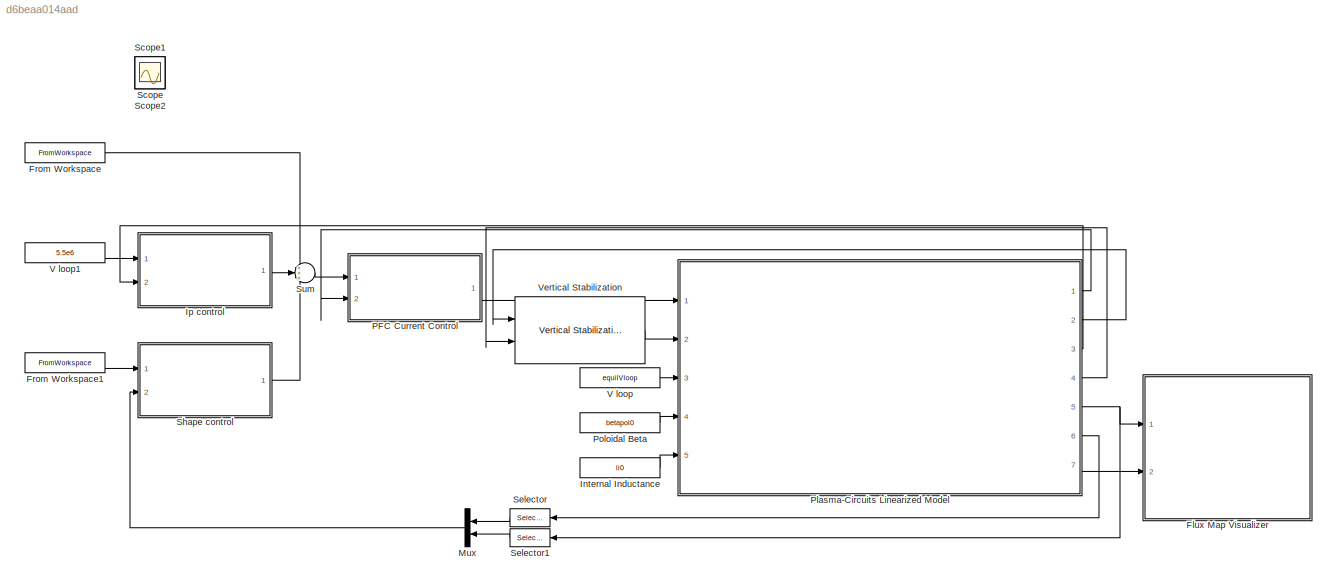
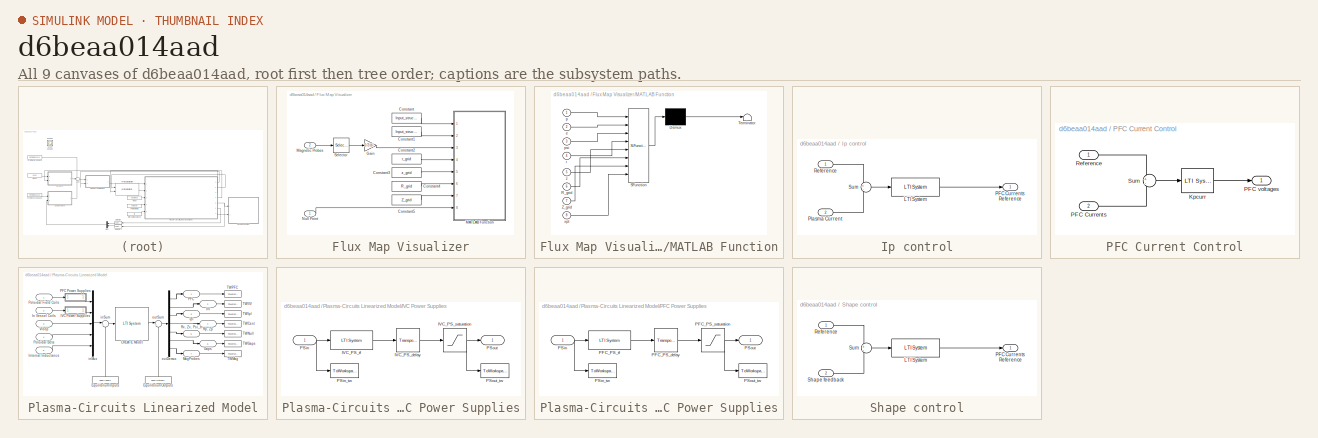
[diagram: thumbnail index - all 9 canvases of the model, root first then tree order]
MODEL slx_d6beaa014aad
KIND model
CONFIG AbsTol = auto
CONFIG EnableMultiTasking = off
CONFIG FixedStep = auto
CONFIG MaxStep = auto
CONFIG MinStep = auto
CONFIG RelTol = 1e-3
CONFIG SampleTimeConstraint = Unconstrained
CONFIG SolverName = VariableStepAuto
CONFIG StartTime = 0.0
CONFIG StopTime = I_FF.time(end)
BLOCK [SubSystem] Flux Map Visualizer
  AncestorBlock = JT60SA_Magnetic_Control/Flux Map Visualizer
  InitFcn = addpath ./flux_grid_functions\n[r_grid, z_grid, R_grid, Z_grid, F0, idxGrid] = initFluxGrid(Input_struct,y_np,y_type, mag, 0);
  NameLocation = top
  Ports = [2]
  RequestExecContextInheritance = off
  StartFcn = % fig_grid= figure()
BLOCK [Constant] Flux Map Visualizer/Constant
  Value = Input_struct.p
BLOCK [Constant] Flux Map Visualizer/Constant1
  Value = Input_struct.e
BLOCK [Constant] Flux Map Visualizer/Constant2
  Value = r_grid
BLOCK [Constant] Flux Map Visualizer/Constant3
  Value = z_grid
BLOCK [Constant] Flux Map Visualizer/Constant4
  Value = R_grid
BLOCK [Constant] Flux Map Visualizer/Constant5
  Value = Z_grid
BLOCK [Gain] Flux Map Visualizer/Gain
  Gain = 1/2/pi
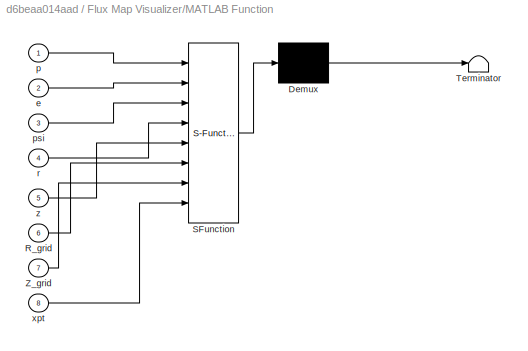
BLOCK [SubSystem] Flux Map Visualizer/MATLAB Function
  ErrorFcn = Stateflow.Translate.translate
  PermitHierarchicalResolution = ExplicitOnly
  Ports = [8]
  RequestExecContextInheritance = off
  SFBlockType = MATLAB Function
  SystemSampleTime = 5e-2
  TreatAsAtomicUnit = on
BLOCK [Demux] Flux Map Visualizer/MATLAB Function/ Demux 
  Outputs = 1
  Ports = [1, 1]
BLOCK [S-Function] Flux Map Visualizer/MATLAB Function/ SFunction 
  EnableBusSupport = on
  FunctionName = sf_sfun
  PortCounts = [8 1]
  Ports = [8, 1]
  SFcnIsStateOwnerBlock = off
  SFunctionDeploymentMode = off
  Tag = Stateflow S-Function 3
BLOCK [Terminator] Flux Map Visualizer/MATLAB Function/ Terminator 
BLOCK [Inport] Flux Map Visualizer/MATLAB Function/R_grid
  Port = 6
BLOCK [Inport] Flux Map Visualizer/MATLAB Function/Z_grid
  Port = 7
BLOCK [Inport] Flux Map Visualizer/MATLAB Function/e
  Port = 2
BLOCK [Inport] Flux Map Visualizer/MATLAB Function/p
BLOCK [Inport] Flux Map Visualizer/MATLAB Function/psi
  Port = 3
BLOCK [Inport] Flux Map Visualizer/MATLAB Function/r
  Port = 4
BLOCK [Inport] Flux Map Visualizer/MATLAB Function/xpt
  Port = 8
BLOCK [Inport] Flux Map Visualizer/MATLAB Function/z
  Port = 5
BLOCK [Inport] Flux Map Visualizer/Magnetic Probes
  Port = 2
BLOCK [Inport] Flux Map Visualizer/Null Point
BLOCK [Selector] Flux Map Visualizer/Selector
  IndexOptions = Index vector (dialog)
  Indices = idxGrid
  InputPortWidth = nMag
  OutputSizes = 1
  Ports = [1, 1]
BLOCK [FromWorkspace] From Workspace
  VariableName = I_FF
BLOCK [FromWorkspace] From Workspace1
  VariableName = shp_ref
BLOCK [Constant] Internal Inductance
  Value = li0
BLOCK [SubSystem] Ip control
  Ports = [2, 1]
  RequestExecContextInheritance = off
BLOCK [Reference] Ip control/LTI System  REF=cstblocks/LTI System
  Ports = [1, 1]
  SourceBlock = cstblocks/LTI System
  SourceProductBaseCode = CT
  SourceType = LTI Block
BLOCK [Outport] Ip control/PFC Currents Reference
  VectorParamsAs1DForOutWhenUnconnected = off
BLOCK [Inport] Ip control/Plasma Current
  Port = 2
BLOCK [Inport] Ip control/Reference
BLOCK [Sum] Ip control/Sum
  Inputs = +-
  Ports = [2, 1]
BLOCK [Mux] Mux
  DisplayOption = bar
  Inputs = 2
  NameLocation = top
  Ports = [2, 1]
BLOCK [SubSystem] PFC Current Control
  AncestorBlock = JT60SA_Magnetic_Control/PFC Current Control
  NameLocation = top
  Ports = [2, 1]
  RequestExecContextInheritance = off
BLOCK [Reference] PFC Current Control/Kpcurr  REF=cstblocks/LTI System
  Ports = [1, 1]
  SourceBlock = cstblocks/LTI System
  SourceProductBaseCode = CT
  SourceType = LTI Block
BLOCK [Inport] PFC Current Control/PFC Currents
  Port = 2
BLOCK [Outport] PFC Current Control/PFC voltages
  VectorParamsAs1DForOutWhenUnconnected = off
BLOCK [Inport] PFC Current Control/Reference
BLOCK [Sum] PFC Current Control/Sum
  Inputs = +-
  Ports = [2, 1]
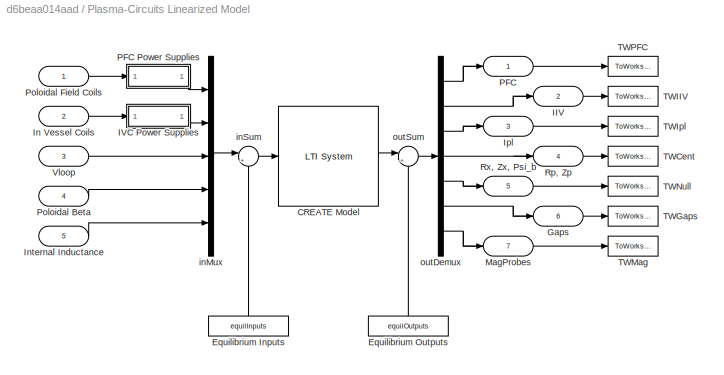
BLOCK [SubSystem] Plasma-Circuits Linearized Model
  Ports = [5, 7]
  RequestExecContextInheritance = off
BLOCK [Reference] Plasma-Circuits Linearized Model/CREATE Model  REF=cstblocks/LTI System
  Ports = [1, 1]
  SourceBlock = cstblocks/LTI System
  SourceProductBaseCode = CT
  SourceType = LTI Block
BLOCK [Constant] Plasma-Circuits Linearized Model/Equilibrium Inputs
  NameLocation = right
  Value = equilInputs
BLOCK [Constant] Plasma-Circuits Linearized Model/Equilibrium Outputs
  NameLocation = right
  Value = equilOutputs
BLOCK [Outport] Plasma-Circuits Linearized Model/Gaps
  Port = 6
BLOCK [Outport] Plasma-Circuits Linearized Model/IIV
  Port = 2
BLOCK [SubSystem] Plasma-Circuits Linearized Model/IVC Power Supplies
  Ports = [1, 1]
  RequestExecContextInheritance = off
BLOCK [TransportDelay] Plasma-Circuits Linearized Model/IVC Power Supplies/IVC_PS_delay
  DelayTime = IV_PS.delay
  Ports = [1, 1]
BLOCK [Saturate] Plasma-Circuits Linearized Model/IVC Power Supplies/IVC_PS_saturation
  LowerLimit = -IVC_sat
  UpperLimit = IVC_sat
BLOCK [Reference] Plasma-Circuits Linearized Model/IVC Power Supplies/IVC_PS_tf  REF=cstblocks/LTI System
  Ports = [1, 1]
  SourceBlock = cstblocks/LTI System
  SourceProductBaseCode = CT
  SourceType = LTI Block
BLOCK [Inport] Plasma-Circuits Linearized Model/IVC Power Supplies/PSin
BLOCK [ToWorkspace] Plasma-Circuits Linearized Model/IVC Power Supplies/PSin_tw
  MaxDataPoints = inf
  Ports = [1]
  SaveFormat = Structure With Time
  VariableName = Vreq_IVC
BLOCK [Outport] Plasma-Circuits Linearized Model/IVC Power Supplies/PSout
BLOCK [ToWorkspace] Plasma-Circuits Linearized Model/IVC Power Supplies/PSout_tw
  MaxDataPoints = inf
  Ports = [1]
  SaveFormat = Structure With Time
  VariableName = V_IVC
BLOCK [Inport] Plasma-Circuits Linearized Model/In Vessel Coils
  Port = 2
BLOCK [Inport] Plasma-Circuits Linearized Model/Internal Inductance
  Port = 5
BLOCK [Outport] Plasma-Circuits Linearized Model/Ipl
  Port = 3
BLOCK [Outport] Plasma-Circuits Linearized Model/MagProbes
  Port = 7
BLOCK [Outport] Plasma-Circuits Linearized Model/PFC
BLOCK [SubSystem] Plasma-Circuits Linearized Model/PFC Power Supplies
  Ports = [1, 1]
  RequestExecContextInheritance = off
BLOCK [TransportDelay] Plasma-Circuits Linearized Model/PFC Power Supplies/PFC_PS_delay
  DelayTime = EV_PS.delay
  Ports = [1, 1]
BLOCK [Saturate] Plasma-Circuits Linearized Model/PFC Power Supplies/PFC_PS_saturation
  LowerLimit = -PFC_sat
  UpperLimit = PFC_sat
BLOCK [Reference] Plasma-Circuits Linearized Model/PFC Power Supplies/PFC_PS_tf  REF=cstblocks/LTI System
  Ports = [1, 1]
  SourceBlock = cstblocks/LTI System
  SourceProductBaseCode = CT
  SourceType = LTI Block
BLOCK [Inport] Plasma-Circuits Linearized Model/PFC Power Supplies/PSin
BLOCK [ToWorkspace] Plasma-Circuits Linearized Model/PFC Power Supplies/PSin_tw
  MaxDataPoints = inf
  Ports = [1]
  SaveFormat = Structure With Time
  VariableName = Vreq_PFC
BLOCK [Outport] Plasma-Circuits Linearized Model/PFC Power Supplies/PSout
BLOCK [ToWorkspace] Plasma-Circuits Linearized Model/PFC Power Supplies/PSout_tw
  MaxDataPoints = inf
  Ports = [1]
  SaveFormat = Structure With Time
  VariableName = V_PFC
BLOCK [Inport] Plasma-Circuits Linearized Model/Poloidal Beta
  Port = 4
BLOCK [Inport] Plasma-Circuits Linearized Model/Poloidal Field Coils
BLOCK [Outport] Plasma-Circuits Linearized Model/Rp, Zp
  Port = 4
BLOCK [Outport] Plasma-Circuits Linearized Model/Rx, Zx, Psi_b
  Port = 5
BLOCK [ToWorkspace] Plasma-Circuits Linearized Model/TWCent
  MaxDataPoints = inf
  Ports = [1]
  SampleTime = -1
  SaveFormat = Structure With Time
  VariableName = Centroid
BLOCK [ToWorkspace] Plasma-Circuits Linearized Model/TWGaps
  MaxDataPoints = inf
  Ports = [1]
  SampleTime = -1
  SaveFormat = Structure With Time
  VariableName = Gaps
BLOCK [ToWorkspace] Plasma-Circuits Linearized Model/TWIIV
  MaxDataPoints = inf
  Ports = [1]
  SampleTime = -1
  SaveFormat = Structure With Time
  VariableName = I_IVC
BLOCK [ToWorkspace] Plasma-Circuits Linearized Model/TWIpl
  MaxDataPoints = inf
  Ports = [1]
  SampleTime = -1
  SaveFormat = Structure With Time
  VariableName = Ipl
BLOCK [ToWorkspace] Plasma-Circuits Linearized Model/TWMag
  MaxDataPoints = inf
  Ports = [1]
  SampleTime = -1
  SaveFormat = Structure With Time
  VariableName = MagProbes
BLOCK [ToWorkspace] Plasma-Circuits Linearized Model/TWNull
  MaxDataPoints = inf
  Ports = [1]
  SampleTime = -1
  SaveFormat = Structure With Time
  VariableName = Null_Point
BLOCK [ToWorkspace] Plasma-Circuits Linearized Model/TWPFC
  MaxDataPoints = inf
  Ports = [1]
  SampleTime = -1
  SaveFormat = Structure With Time
  VariableName = I_PFC
BLOCK [Inport] Plasma-Circuits Linearized Model/Vloop
  Port = 3
BLOCK [Mux] Plasma-Circuits Linearized Model/inMux
  Inputs = 5
  Ports = [5, 1]
BLOCK [Sum] Plasma-Circuits Linearized Model/inSum
  Inputs = |+-
  Ports = [2, 1]
BLOCK [Demux] Plasma-Circuits Linearized Model/outDemux
  Outputs = [nCirc, nInVessel, 1, 2, 3, nGaps, nMag]
  Ports = [1, 7]
BLOCK [Sum] Plasma-Circuits Linearized Model/outSum
  Inputs = |++
  Ports = [2, 1]
BLOCK [Constant] Poloidal Beta
  Value = betapol0
BLOCK [Scope] Scope
  Floating = off
  IOType = viewer
  NumInputPorts = 1
  Ports = []
  ScopeSpecificationString = Simulink.scopes.TimeScopeBlockCfg('CurrentConfiguration', extmgr.ConfigurationSet(extmgr.Configuration('Core','General UI',true),extmgr.Configuration('Core','Source UI',true),extmgr.Configuration('Sources','WiredSimulink',true),extmgr.Configuration('Visuals','Time Domain',true,'SerializedDisplays',{struct('MinYLimReal','5470511.53373','MaxYLimReal','5621209.25925','YLabelReal','','MinYLimMag','547...<+1454ch>
BLOCK [Scope] Scope1
  Floating = off
  IOType = viewer
  NumInputPorts = 1
  Ports = []
  ScopeSpecificationString = Simulink.scopes.TimeScopeBlockCfg('CurrentConfiguration', extmgr.ConfigurationSet(extmgr.Configuration('Core','General UI',true),extmgr.Configuration('Core','Source UI',true),extmgr.Configuration('Sources','WiredSimulink',true,'DataLoggingVariableName','ScopeData1'),extmgr.Configuration('Visuals','Time Domain',true,'SerializedDisplays',{struct('MinYLimReal','-96067.66516','MaxYLimReal','114160.072...<+1782ch>
BLOCK [Scope] Scope2
  Floating = off
  IOType = viewer
  NumInputPorts = 1
  Ports = []
  ScopeSpecificationString = Simulink.scopes.TimeScopeBlockCfg('CurrentConfiguration', extmgr.ConfigurationSet(extmgr.Configuration('Core','General UI',true),extmgr.Configuration('Core','Source UI',true),extmgr.Configuration('Sources','WiredSimulink',true,'DataLoggingVariableName','ScopeData2'),extmgr.Configuration('Visuals','Time Domain',true,'SerializedDisplays',{struct('MinYLimReal','-0.3921','MaxYLimReal','3.38374','YLabe...<+1432ch>
BLOCK [Selector] Selector
  IndexOptions = Index vector (dialog)
  Indices = iGap
  InputPortWidth = nGaps
  NameLocation = top
  OutputSizes = 1
  Ports = [1, 1]
BLOCK [Selector] Selector1
  IndexOptions = Index vector (dialog)
  Indices = [1 2]
  InputPortWidth = 3
  NameLocation = top
  OutputSizes = 1
  Ports = [1, 1]
BLOCK [SubSystem] Shape control
  Ports = [2, 1]
  RequestExecContextInheritance = off
BLOCK [Reference] Shape control/LTI System  REF=cstblocks/LTI System
  Ports = [1, 1]
  SourceBlock = cstblocks/LTI System
  SourceProductBaseCode = CT
  SourceType = LTI Block
BLOCK [Outport] Shape control/PFC Currents Reference
  VectorParamsAs1DForOutWhenUnconnected = off
BLOCK [Inport] Shape control/Reference
BLOCK [Inport] Shape control/Shape feedback
  Port = 2
BLOCK [Sum] Shape control/Sum
  Inputs = +-
  Ports = [2, 1]
BLOCK [Sum] Sum
  Inputs = +++
  Ports = [3, 1]
BLOCK [Constant] V loop
  Value = equilVloop
BLOCK [Constant] V loop1
  Value = 5.5e6
BLOCK [Reference] Vertical Stabilization  REF=JT60SA_Magnetic_Control/Vertical Stabilization
  NameLocation = top
  Ports = [2, 1]
  SourceBlock = JT60SA_Magnetic_Control/Vertical Stabilization
  SourceProductName = JT-60SA Magnetic Control
LINE From Workspace1:1 -> Shape control:1
LINE From Workspace:1 -> Sum:1
LINE Internal Inductance:1 -> Plasma-Circuits Linearized Model:5
LINE Ip control/LTI System:1 -> Ip control/PFC Currents Reference:1
LINE Ip control/Plasma Current:1 -> Ip control/Sum:2
LINE Ip control/Reference:1 -> Ip control/Sum:1
LINE Ip control/Sum:1 -> Ip control/LTI System:1
LINE Ip control:1 -> Sum:2
LINE Mux:1 -> Shape control:2
LINE PFC Current Control:1 -> Plasma-Circuits Linearized Model:1
LINE Plasma-Circuits Linearized Model/CREATE Model:1 -> Plasma-Circuits Linearized Model/outSum:1
LINE Plasma-Circuits Linearized Model/Equilibrium Inputs:1 -> Plasma-Circuits Linearized Model/inSum:2
LINE Plasma-Circuits Linearized Model/Equilibrium Outputs:1 -> Plasma-Circuits Linearized Model/outSum:2
LINE Plasma-Circuits Linearized Model/IVC Power Supplies/IVC_PS_delay:1 -> Plasma-Circuits Linearized Model/IVC Power Supplies/IVC_PS_saturation:1
NET Plasma-Circuits Linearized Model/IVC Power Supplies/IVC_PS_saturation:1 -> Plasma-Circuits Linearized Model/IVC Power Supplies/PSout:1, Plasma-Circuits Linearized Model/IVC Power Supplies/PSout_tw:1
LINE Plasma-Circuits Linearized Model/IVC Power Supplies/IVC_PS_tf:1 -> Plasma-Circuits Linearized Model/IVC Power Supplies/IVC_PS_delay:1
NET Plasma-Circuits Linearized Model/IVC Power Supplies/PSin:1 -> Plasma-Circuits Linearized Model/IVC Power Supplies/IVC_PS_tf:1, Plasma-Circuits Linearized Model/IVC Power Supplies/PSin_tw:1
LINE Plasma-Circuits Linearized Model/IVC Power Supplies:1 -> Plasma-Circuits Linearized Model/inMux:2
LINE Plasma-Circuits Linearized Model/In Vessel Coils:1 -> Plasma-Circuits Linearized Model/IVC Power Supplies:1
LINE Plasma-Circuits Linearized Model/Internal Inductance:1 -> Plasma-Circuits Linearized Model/inMux:5
LINE Plasma-Circuits Linearized Model/PFC Power Supplies/PFC_PS_delay:1 -> Plasma-Circuits Linearized Model/PFC Power Supplies/PFC_PS_saturation:1
NET Plasma-Circuits Linearized Model/PFC Power Supplies/PFC_PS_saturation:1 -> Plasma-Circuits Linearized Model/PFC Power Supplies/PSout:1, Plasma-Circuits Linearized Model/PFC Power Supplies/PSout_tw:1
LINE Plasma-Circuits Linearized Model/PFC Power Supplies/PFC_PS_tf:1 -> Plasma-Circuits Linearized Model/PFC Power Supplies/PFC_PS_delay:1
NET Plasma-Circuits Linearized Model/PFC Power Supplies/PSin:1 -> Plasma-Circuits Linearized Model/PFC Power Supplies/PFC_PS_tf:1, Plasma-Circuits Linearized Model/PFC Power Supplies/PSin_tw:1
LINE Plasma-Circuits Linearized Model/PFC Power Supplies:1 -> Plasma-Circuits Linearized Model/inMux:1
LINE Plasma-Circuits Linearized Model/Poloidal Beta:1 -> Plasma-Circuits Linearized Model/inMux:4
LINE Plasma-Circuits Linearized Model/Poloidal Field Coils:1 -> Plasma-Circuits Linearized Model/PFC Power Supplies:1
LINE Plasma-Circuits Linearized Model/Vloop:1 -> Plasma-Circuits Linearized Model/inMux:3
LINE Plasma-Circuits Linearized Model/inMux:1 -> Plasma-Circuits Linearized Model/inSum:1
LINE Plasma-Circuits Linearized Model/inSum:1 -> Plasma-Circuits Linearized Model/CREATE Model:1
NET Plasma-Circuits Linearized Model/outDemux:1 -> Plasma-Circuits Linearized Model/PFC:1, Plasma-Circuits Linearized Model/TWPFC:1
NET Plasma-Circuits Linearized Model/outDemux:2 -> Plasma-Circuits Linearized Model/IIV:1, Plasma-Circuits Linearized Model/TWIIV:1
NET Plasma-Circuits Linearized Model/outDemux:3 -> Plasma-Circuits Linearized Model/Ipl:1, Plasma-Circuits Linearized Model/TWIpl:1
NET Plasma-Circuits Linearized Model/outDemux:4 -> Plasma-Circuits Linearized Model/Rp, Zp:1, Plasma-Circuits Linearized Model/TWCent:1
NET Plasma-Circuits Linearized Model/outDemux:5 -> Plasma-Circuits Linearized Model/Rx, Zx, Psi_b:1, Plasma-Circuits Linearized Model/TWNull:1
NET Plasma-Circuits Linearized Model/outDemux:6 -> Plasma-Circuits Linearized Model/Gaps:1, Plasma-Circuits Linearized Model/TWGaps:1
NET Plasma-Circuits Linearized Model/outDemux:7 -> Plasma-Circuits Linearized Model/MagProbes:1, Plasma-Circuits Linearized Model/TWMag:1
LINE Plasma-Circuits Linearized Model/outSum:1 -> Plasma-Circuits Linearized Model/outDemux:1
LINE Plasma-Circuits Linearized Model:1 -> PFC Current Control:2
LINE Plasma-Circuits Linearized Model:2 -> Vertical Stabilization:1
LINE Plasma-Circuits Linearized Model:3 -> Ip control:2
LINE Plasma-Circuits Linearized Model:4 -> Vertical Stabilization:2
NET Plasma-Circuits Linearized Model:5 -> Flux Map Visualizer:1, Selector1:1
LINE Plasma-Circuits Linearized Model:6 -> Selector:1
LINE Plasma-Circuits Linearized Model:7 -> Flux Map Visualizer:2
LINE Poloidal Beta:1 -> Plasma-Circuits Linearized Model:4
LINE Selector1:1 -> Mux:2
LINE Selector:1 -> Mux:1
LINE Shape control/LTI System:1 -> Shape control/PFC Currents Reference:1
LINE Shape control/Reference:1 -> Shape control/Sum:1
LINE Shape control/Shape feedback:1 -> Shape control/Sum:2
LINE Shape control/Sum:1 -> Shape control/LTI System:1
LINE Shape control:1 -> Sum:3
LINE Sum:1 -> PFC Current Control:1
LINE V loop1:1 -> Ip control:1
LINE V loop:1 -> Plasma-Circuits Linearized Model:3
LINE Vertical Stabilization:1 -> Plasma-Circuits Linearized Model:2
note: NET lines group one-source signal fan-out (src -> all destinations, sorted); 1:1 wires keep LINE
CHART Flux Map Visualizer/MATLAB Function states=1 transitions=1
  STATE_LABEL 'eML_blk_kernel()'
  STATE_LABEL "SCRIPT:\nfunction plotFluxMap(p,e,psi,r,z,R_grid,Z_grid,xpt)\n%#codegen\ncoder.extrinsic('pdemesh');\ncoder.extrinsic('fit');\ncoder.extrinsic('feval');\ncoder.extrinsic('contour');\n\npsib = xpt(3);\n\ngcf\nhold off\nh = pdemesh(p,e,[]);\nset(h,'Color','black');\naxis([0, 6, -4.5, 4.5]), axis equal, hold on\n\nsf = fit([r, z],psi,'linearinterp');      \nFF = feval(sf,R_grid,Z_grid);\ncontour(R_grid,Z_grid,FF, 10);...<+116ch>"
CHART  states=0 transitions=0
